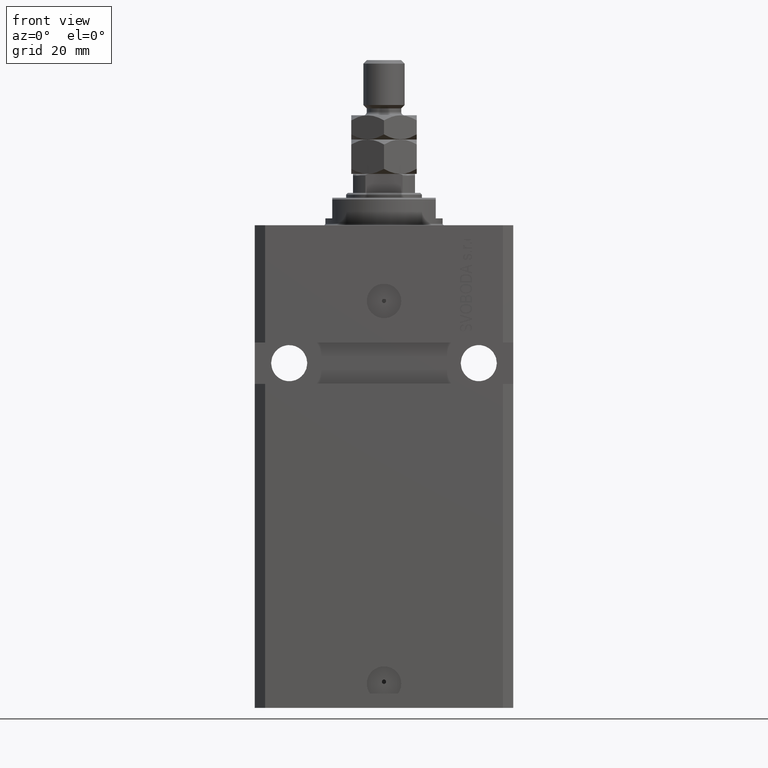
[diagram: clean part render]
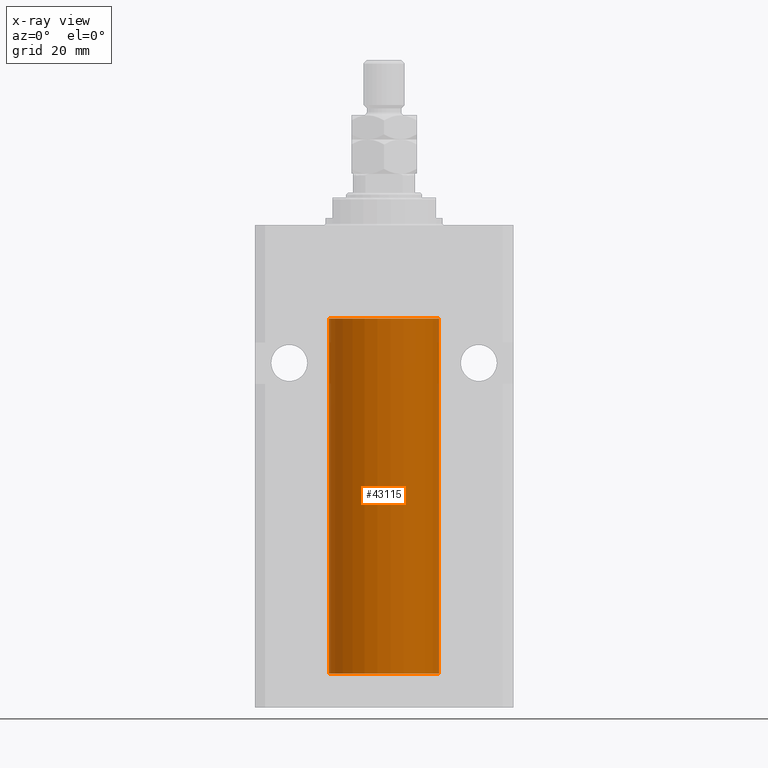
[diagram: x-ray — body ghosted, one internal face saturated and labeled with its STEP entity id]
A machine part, front view, then the same camera in x-ray: the body is ghosted and one INTERNAL B-rep face — a face not visible from any outside direction — is saturated and labeled: STEP entity #43115.
In plain terms, the highlighted cylindrical surface (partial cylindrical patch) has radius 16 mm, axis along (0, 0, 1).
Its self-contained STEP definition (entity closure, byte-faithful):
#791 = DIRECTION ( 'NONE',  ( -0.000000000000000000, -0.000000000000000000, 1.000000000000000000 ) ) ;
#3034 = CARTESIAN_POINT ( 'NONE',  ( -16.00000000000000000, 1.959434878635765131E-15, -130.0999999999999943 ) ) ;
#3781 = CARTESIAN_POINT ( 'NONE',  ( 15.99708487730508821, -0.3264777333248704561, -127.4426616680992339 ) ) ;
#4327 = DIRECTION ( 'NONE',  ( 0.000000000000000000, 0.000000000000000000, 1.000000000000000000 ) ) ;
#4445 = CARTESIAN_POINT ( 'NONE',  ( 15.98778830858101685, -0.6250000000001232348, -128.0000000000000000 ) ) ;
#5778 = ORIENTED_EDGE ( 'NONE', *, *, #46655, .T. ) ;
#8014 = CARTESIAN_POINT ( 'NONE',  ( 0.000000000000000000, 0.000000000000000000, -27.10000000000000142 ) ) ;
#8132 = B_SPLINE_CURVE_WITH_KNOTS ( 'NONE', 3,
 ( #15031, #29275, #3781, #37315, #33670, #40757 ),
 .UNSPECIFIED., .F., .F.,
 ( 4, 2, 4 ),
 ( 0.001954221322144558768, 0.002442922366142232134, 0.002931623410139905066 ),
 .UNSPECIFIED. ) ;
#9330 = CARTESIAN_POINT ( 'NONE',  ( -16.00000000000000000, 1.959434878635765131E-15, -27.10000000000000142 ) ) ;
#9643 = VERTEX_POINT ( 'NONE', #20638 ) ;
#10773 = DIRECTION ( 'NONE',  ( -0.000000000000000000, -0.000000000000000000, 1.000000000000000000 ) ) ;
#12701 = CARTESIAN_POINT ( 'NONE',  ( 15.98778830858102040, -0.6250000000001159073, -128.1648119328233690 ) ) ;
#12922 = EDGE_CURVE ( 'NONE', #31393, #40714, #21104, .T. ) ;
#13916 = ORIENTED_EDGE ( 'NONE', *, *, #35680, .T. ) ;
#13959 = CARTESIAN_POINT ( 'NONE',  ( 16.00000000000000000, 0.000000000000000000, -130.0999999999999943 ) ) ;
#14001 = DIRECTION ( 'NONE',  ( -0.000000000000000000, -0.000000000000000000, 1.000000000000000000 ) ) ;
#15031 = CARTESIAN_POINT ( 'NONE',  ( 16.00000000000013145, 3.665533114689029904E-13, -127.3749999999965752 ) ) ;
#15171 = CIRCLE ( 'NONE', #47262, 16.00000000000000000 ) ;
#17422 = CARTESIAN_POINT ( 'NONE',  ( 16.00000000000000000, 0.000000000000000000, -130.0999999999999943 ) ) ;
#17595 = DIRECTION ( 'NONE',  ( 1.000000000000000000, 0.000000000000000000, 0.000000000000000000 ) ) ;
#17617 = LINE ( 'NONE', #13959, #39339 ) ;
#20270 = CARTESIAN_POINT ( 'NONE',  ( 15.99070553365076996, -0.5573460204199366386, -128.3264689786301176 ) ) ;
#20515 = CARTESIAN_POINT ( 'NONE',  ( 16.00000000000000000, 2.199125140786256469E-15, -128.6250000000000284 ) ) ;
#20638 = CARTESIAN_POINT ( 'NONE',  ( 16.00000000000013145, 3.665533114689029904E-13, -127.3749999999965752 ) ) ;
#21104 = LINE ( 'NONE', #17422, #22421 ) ;
#21481 = ORIENTED_EDGE ( 'NONE', *, *, #12922, .F. ) ;
#21856 = CARTESIAN_POINT ( 'NONE',  ( 15.98778830858101685, -0.6250000000001232348, -128.0000000000000000 ) ) ;
#21889 = VERTEX_POINT ( 'NONE', #47279 ) ;
#22421 = VECTOR ( 'NONE', #14001, 1000.000000000000000 ) ;
#22949 = VECTOR ( 'NONE', #791, 1000.000000000000000 ) ;
#23122 = DIRECTION ( 'NONE',  ( 0.000000000000000000, 0.000000000000000000, 1.000000000000000000 ) ) ;
#23371 = DIRECTION ( 'NONE',  ( 1.000000000000000000, 0.000000000000000000, 0.000000000000000000 ) ) ;
#24194 = AXIS2_PLACEMENT_3D ( 'NONE', #8014, #4327, #25640 ) ;
#25640 = DIRECTION ( 'NONE',  ( 1.000000000000000000, 0.000000000000000000, 0.000000000000000000 ) ) ;
#26238 = LINE ( 'NONE', #37992, #22949 ) ;
#26492 = CARTESIAN_POINT ( 'NONE',  ( 16.00000000000000000, -0.1650734421240379612, -128.6250000000000568 ) ) ;
#27917 = CYLINDRICAL_SURFACE ( 'NONE', #32014, 16.00000000000000000 ) ;
#28166 = FACE_OUTER_BOUND ( 'NONE', #29400, .T. ) ;
#28260 = EDGE_CURVE ( 'NONE', #9643, #44279, #8132, .T. ) ;
#28451 = CARTESIAN_POINT ( 'NONE',  ( 16.00000000000000000, 2.199125140786256469E-15, -128.6250000000000284 ) ) ;
#29275 = CARTESIAN_POINT ( 'NONE',  ( 16.00000000000000355, -0.1632201307032006554, -127.3749999999998010 ) ) ;
#29400 = EDGE_LOOP ( 'NONE', ( #36433, #13916, #5778, #40819, #30481, #40124, #21481 ) ) ;
#30100 = B_SPLINE_CURVE_WITH_KNOTS ( 'NONE', 3,
 ( #4445, #12701, #20270, #45357, #26492, #20515 ),
 .UNSPECIFIED., .F., .F.,
 ( 4, 2, 4 ),
 ( 0.002931623410139905066, 0.003419811200989341087, 0.003907998991838777109 ),
 .UNSPECIFIED. ) ;
#30481 = ORIENTED_EDGE ( 'NONE', *, *, #28260, .T. ) ;
#30694 = VERTEX_POINT ( 'NONE', #9330 ) ;
#31393 = VERTEX_POINT ( 'NONE', #48115 ) ;
#32014 = AXIS2_PLACEMENT_3D ( 'NONE', #42853, #36230, #17595 ) ;
#32153 = CIRCLE ( 'NONE', #24194, 16.00000000000000000 ) ;
#33670 = CARTESIAN_POINT ( 'NONE',  ( 15.98778830858102040, -0.6250000000001306732, -127.8350147931928689 ) ) ;
#34958 = EDGE_CURVE ( 'NONE', #9643, #21889, #17617, .T. ) ;
#35680 = EDGE_CURVE ( 'NONE', #42588, #30694, #26238, .T. ) ;
#36230 = DIRECTION ( 'NONE',  ( -0.000000000000000000, -0.000000000000000000, 1.000000000000000000 ) ) ;
#36433 = ORIENTED_EDGE ( 'NONE', *, *, #36681, .F. ) ;
#36681 = EDGE_CURVE ( 'NONE', #42588, #31393, #15171, .T. ) ;
#37315 = CARTESIAN_POINT ( 'NONE',  ( 15.99071289786271954, -0.5571474671814827806, -127.6731966548882440 ) ) ;
#37992 = CARTESIAN_POINT ( 'NONE',  ( -16.00000000000000000, 1.959434878635765131E-15, -130.0999999999999943 ) ) ;
#39339 = VECTOR ( 'NONE', #10773, 1000.000000000000000 ) ;
#40124 = ORIENTED_EDGE ( 'NONE', *, *, #47390, .T. ) ;
#40714 = VERTEX_POINT ( 'NONE', #28451 ) ;
#40757 = CARTESIAN_POINT ( 'NONE',  ( 15.98778830858101685, -0.6250000000001232348, -128.0000000000000000 ) ) ;
#40819 = ORIENTED_EDGE ( 'NONE', *, *, #34958, .F. ) ;
#42223 = CARTESIAN_POINT ( 'NONE',  ( 0.000000000000000000, 0.000000000000000000, -130.0999999999999943 ) ) ;
#42588 = VERTEX_POINT ( 'NONE', #3034 ) ;
#42853 = CARTESIAN_POINT ( 'NONE',  ( 0.000000000000000000, 0.000000000000000000, -130.0999999999999943 ) ) ;
#43115 = ADVANCED_FACE ( 'NONE', ( #28166 ), #27917, .F. ) ;
#44279 = VERTEX_POINT ( 'NONE', #21856 ) ;
#45357 = CARTESIAN_POINT ( 'NONE',  ( 15.99707785788560521, -0.3267997233067349017, -128.5571521527664345 ) ) ;
#46655 = EDGE_CURVE ( 'NONE', #30694, #21889, #32153, .T. ) ;
#47262 = AXIS2_PLACEMENT_3D ( 'NONE', #42223, #23122, #23371 ) ;
#47279 = CARTESIAN_POINT ( 'NONE',  ( 16.00000000000000000, 0.000000000000000000, -27.10000000000000142 ) ) ;
#47390 = EDGE_CURVE ( 'NONE', #44279, #40714, #30100, .T. ) ;
#48115 = CARTESIAN_POINT ( 'NONE',  ( 16.00000000000000000, 0.000000000000000000, -130.0999999999999943 ) ) ;